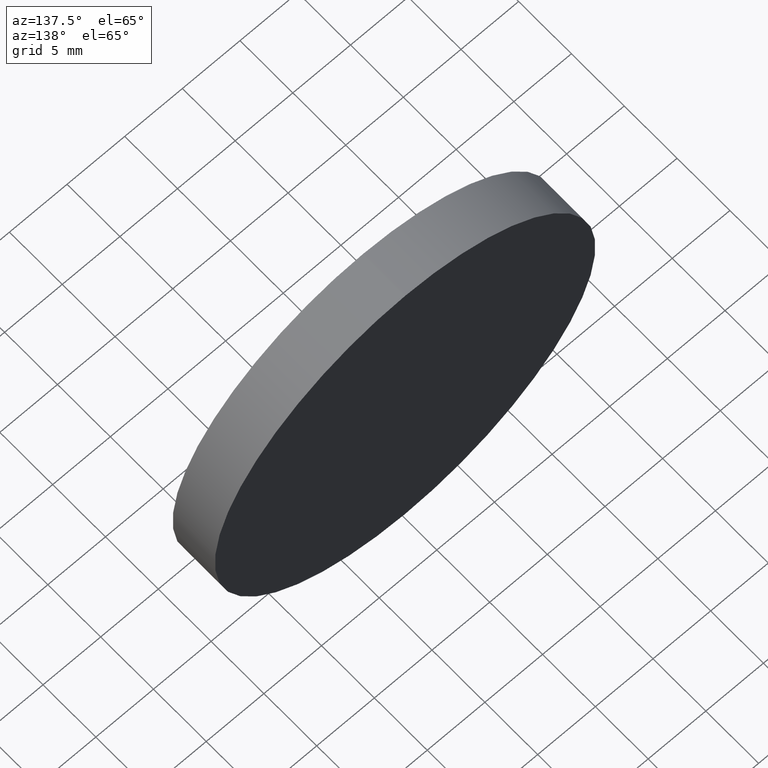
[diagram: clean part render]
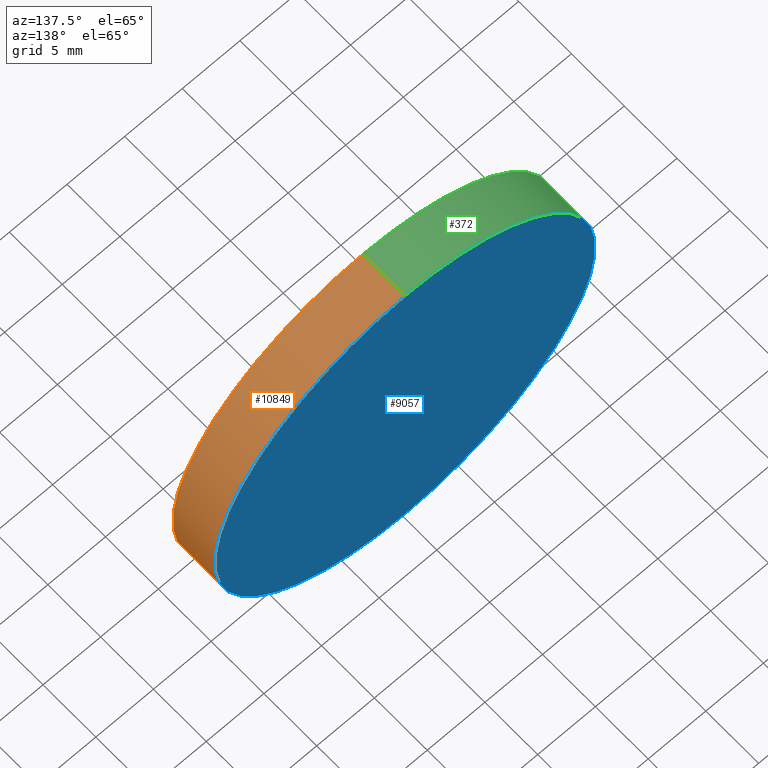
[diagram: same view with three faces highlighted in distinct colors, each labeled with its STEP entity id]
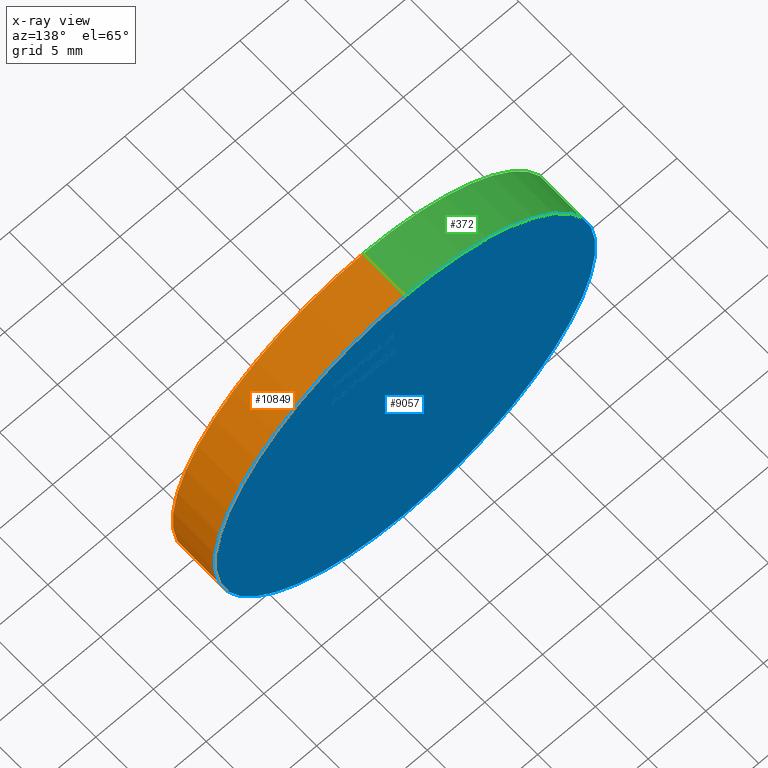
[diagram: x-ray of the same camera — body ghosted, the three highlighted faces saturated]
A machine part, auxiliary view with three faces highlighted in distinct colors.
The next image is the same camera in x-ray (body ghosted, the three faces saturated) — at least one of them is partly hidden behind the body in this view.
Their STEP definitions:

[orange] entity #10849 — the highlighted cylindrical surface (partial cylindrical patch) has radius 16.5 mm, axis along (-0, -1, -0).
#498 = DIRECTION ( 'NONE',  ( 0.000000000000000000, 0.000000000000000000, -1.000000000000000000 ) ) ;
#676 = ORIENTED_EDGE ( 'NONE', *, *, #2953, .F. ) ;
#814 = ORIENTED_EDGE ( 'NONE', *, *, #2279, .T. ) ;
#1492 = CARTESIAN_POINT ( 'NONE',  ( 0.000000000000000000, 2.000000000000000000, 0.000000000000000000 ) ) ;
#1744 = DIRECTION ( 'NONE',  ( 0.000000000000000000, 0.000000000000000000, 1.000000000000000000 ) ) ;
#1957 = AXIS2_PLACEMENT_3D ( 'NONE', #5763, #6756, #1744 ) ;
#1980 = CARTESIAN_POINT ( 'NONE',  ( 2.020667218593133100E-15, 2.000000000000000000, 16.50000000000000000 ) ) ;
#1995 = CIRCLE ( 'NONE', #11368, 16.50000000000000000 ) ;
#2279 = EDGE_CURVE ( 'NONE', #4608, #10196, #1995, .T. ) ;
#2467 = CIRCLE ( 'NONE', #1957, 16.50000000000000000 ) ;
#2673 = CARTESIAN_POINT ( 'NONE',  ( 0.000000000000000000, 2.000000000000000000, -16.50000000000000000 ) ) ;
#2813 = VERTEX_POINT ( 'NONE', #1980 ) ;
#2953 = EDGE_CURVE ( 'NONE', #2813, #7471, #2467, .T. ) ;
#3185 = ORIENTED_EDGE ( 'NONE', *, *, #11003, .T. ) ;
#3250 = LINE ( 'NONE', #11536, #9040 ) ;
#3373 = DIRECTION ( 'NONE',  ( 0.000000000000000000, 1.000000000000000000, 0.000000000000000000 ) ) ;
#3553 = EDGE_CURVE ( 'NONE', #7471, #10196, #3250, .T. ) ;
#3919 = CARTESIAN_POINT ( 'NONE',  ( 2.020667218593133100E-15, 2.000000000000000000, 16.50000000000000000 ) ) ;
#4608 = VERTEX_POINT ( 'NONE', #12791 ) ;
#4743 = CARTESIAN_POINT ( 'NONE',  ( 0.000000000000000000, -2.000000000000000000, -16.50000000000000000 ) ) ;
#4936 = DIRECTION ( 'NONE',  ( -0.000000000000000000, -1.000000000000000000, -0.000000000000000000 ) ) ;
#5171 = CARTESIAN_POINT ( 'NONE',  ( 0.000000000000000000, -2.000000000000000000, 0.000000000000000000 ) ) ;
#5763 = CARTESIAN_POINT ( 'NONE',  ( 0.000000000000000000, 2.000000000000000000, 0.000000000000000000 ) ) ;
#6071 = FACE_OUTER_BOUND ( 'NONE', #7396, .T. ) ;
#6218 = AXIS2_PLACEMENT_3D ( 'NONE', #1492, #7331, #498 ) ;
#6465 = DIRECTION ( 'NONE',  ( -0.000000000000000000, -1.000000000000000000, -0.000000000000000000 ) ) ;
#6756 = DIRECTION ( 'NONE',  ( 0.000000000000000000, 1.000000000000000000, 0.000000000000000000 ) ) ;
#7331 = DIRECTION ( 'NONE',  ( -0.000000000000000000, -1.000000000000000000, -0.000000000000000000 ) ) ;
#7396 = EDGE_LOOP ( 'NONE', ( #676, #3185, #814, #9732 ) ) ;
#7471 = VERTEX_POINT ( 'NONE', #2673 ) ;
#7773 = CYLINDRICAL_SURFACE ( 'NONE', #6218, 16.50000000000000000 ) ;
#9040 = VECTOR ( 'NONE', #6465, 1000.000000000000000 ) ;
#9732 = ORIENTED_EDGE ( 'NONE', *, *, #3553, .F. ) ;
#10196 = VERTEX_POINT ( 'NONE', #4743 ) ;
#10360 = DIRECTION ( 'NONE',  ( 0.000000000000000000, 0.000000000000000000, 1.000000000000000000 ) ) ;
#10849 = ADVANCED_FACE ( 'NONE', ( #6071 ), #7773, .T. ) ;
#10930 = LINE ( 'NONE', #3919, #12946 ) ;
#11003 = EDGE_CURVE ( 'NONE', #2813, #4608, #10930, .T. ) ;
#11368 = AXIS2_PLACEMENT_3D ( 'NONE', #5171, #3373, #10360 ) ;
#11536 = CARTESIAN_POINT ( 'NONE',  ( 0.000000000000000000, 2.000000000000000000, -16.50000000000000000 ) ) ;
#12791 = CARTESIAN_POINT ( 'NONE',  ( 2.020667218593133100E-15, -2.000000000000000000, 16.50000000000000000 ) ) ;
#12946 = VECTOR ( 'NONE', #4936, 1000.000000000000000 ) ;

[blue] entity #9057 — the highlighted planar face has unit normal (0, 1, 0).
#252 = AXIS2_PLACEMENT_3D ( 'NONE', #1482, #3562, #11385 ) ;
#1436 = CARTESIAN_POINT ( 'NONE',  ( 0.000000000000000000, 2.000000000000000000, 0.000000000000000000 ) ) ;
#1478 = DIRECTION ( 'NONE',  ( 0.000000000000000000, -0.000000000000000000, 1.000000000000000000 ) ) ;
#1482 = CARTESIAN_POINT ( 'NONE',  ( 0.000000000000000000, 2.000000000000000000, 0.000000000000000000 ) ) ;
#1551 = ORIENTED_EDGE ( 'NONE', *, *, #2953, .T. ) ;
#1744 = DIRECTION ( 'NONE',  ( 0.000000000000000000, 0.000000000000000000, 1.000000000000000000 ) ) ;
#1957 = AXIS2_PLACEMENT_3D ( 'NONE', #5763, #6756, #1744 ) ;
#1980 = CARTESIAN_POINT ( 'NONE',  ( 2.020667218593133100E-15, 2.000000000000000000, 16.50000000000000000 ) ) ;
#2467 = CIRCLE ( 'NONE', #1957, 16.50000000000000000 ) ;
#2673 = CARTESIAN_POINT ( 'NONE',  ( 0.000000000000000000, 2.000000000000000000, -16.50000000000000000 ) ) ;
#2769 = CIRCLE ( 'NONE', #252, 16.50000000000000000 ) ;
#2813 = VERTEX_POINT ( 'NONE', #1980 ) ;
#2953 = EDGE_CURVE ( 'NONE', #2813, #7471, #2467, .T. ) ;
#3562 = DIRECTION ( 'NONE',  ( 0.000000000000000000, 1.000000000000000000, 0.000000000000000000 ) ) ;
#4276 = AXIS2_PLACEMENT_3D ( 'NONE', #1436, #5407, #1478 ) ;
#5407 = DIRECTION ( 'NONE',  ( 0.000000000000000000, 1.000000000000000000, 0.000000000000000000 ) ) ;
#5763 = CARTESIAN_POINT ( 'NONE',  ( 0.000000000000000000, 2.000000000000000000, 0.000000000000000000 ) ) ;
#6756 = DIRECTION ( 'NONE',  ( 0.000000000000000000, 1.000000000000000000, 0.000000000000000000 ) ) ;
#7471 = VERTEX_POINT ( 'NONE', #2673 ) ;
#7827 = EDGE_LOOP ( 'NONE', ( #9852, #1551 ) ) ;
#9057 = ADVANCED_FACE ( 'NONE', ( #10796 ), #12412, .T. ) ;
#9852 = ORIENTED_EDGE ( 'NONE', *, *, #12865, .T. ) ;
#10796 = FACE_OUTER_BOUND ( 'NONE', #7827, .T. ) ;
#11385 = DIRECTION ( 'NONE',  ( 0.000000000000000000, 0.000000000000000000, 1.000000000000000000 ) ) ;
#12412 = PLANE ( 'NONE',  #4276 ) ;
#12865 = EDGE_CURVE ( 'NONE', #7471, #2813, #2769, .T. ) ;

[green] entity #372 — the highlighted cylindrical surface (partial cylindrical patch) has radius 16.5 mm, axis along (-0, -1, -0).
#252 = AXIS2_PLACEMENT_3D ( 'NONE', #1482, #3562, #11385 ) ;
#307 = AXIS2_PLACEMENT_3D ( 'NONE', #1220, #11347, #11302 ) ;
#372 = ADVANCED_FACE ( 'NONE', ( #3607 ), #7986, .T. ) ;
#1086 = DIRECTION ( 'NONE',  ( 0.000000000000000000, 0.000000000000000000, -1.000000000000000000 ) ) ;
#1220 = CARTESIAN_POINT ( 'NONE',  ( 0.000000000000000000, -2.000000000000000000, 0.000000000000000000 ) ) ;
#1482 = CARTESIAN_POINT ( 'NONE',  ( 0.000000000000000000, 2.000000000000000000, 0.000000000000000000 ) ) ;
#1794 = CIRCLE ( 'NONE', #307, 16.50000000000000000 ) ;
#1980 = CARTESIAN_POINT ( 'NONE',  ( 2.020667218593133100E-15, 2.000000000000000000, 16.50000000000000000 ) ) ;
#2673 = CARTESIAN_POINT ( 'NONE',  ( 0.000000000000000000, 2.000000000000000000, -16.50000000000000000 ) ) ;
#2769 = CIRCLE ( 'NONE', #252, 16.50000000000000000 ) ;
#2813 = VERTEX_POINT ( 'NONE', #1980 ) ;
#2845 = ORIENTED_EDGE ( 'NONE', *, *, #5758, .T. ) ;
#3250 = LINE ( 'NONE', #11536, #9040 ) ;
#3553 = EDGE_CURVE ( 'NONE', #7471, #10196, #3250, .T. ) ;
#3562 = DIRECTION ( 'NONE',  ( 0.000000000000000000, 1.000000000000000000, 0.000000000000000000 ) ) ;
#3607 = FACE_OUTER_BOUND ( 'NONE', #6032, .T. ) ;
#3919 = CARTESIAN_POINT ( 'NONE',  ( 2.020667218593133100E-15, 2.000000000000000000, 16.50000000000000000 ) ) ;
#4608 = VERTEX_POINT ( 'NONE', #12791 ) ;
#4743 = CARTESIAN_POINT ( 'NONE',  ( 0.000000000000000000, -2.000000000000000000, -16.50000000000000000 ) ) ;
#4936 = DIRECTION ( 'NONE',  ( -0.000000000000000000, -1.000000000000000000, -0.000000000000000000 ) ) ;
#5758 = EDGE_CURVE ( 'NONE', #10196, #4608, #1794, .T. ) ;
#6032 = EDGE_LOOP ( 'NONE', ( #7402, #9127, #10222, #2845 ) ) ;
#6465 = DIRECTION ( 'NONE',  ( -0.000000000000000000, -1.000000000000000000, -0.000000000000000000 ) ) ;
#7402 = ORIENTED_EDGE ( 'NONE', *, *, #11003, .F. ) ;
#7471 = VERTEX_POINT ( 'NONE', #2673 ) ;
#7986 = CYLINDRICAL_SURFACE ( 'NONE', #9013, 16.50000000000000000 ) ;
#8017 = CARTESIAN_POINT ( 'NONE',  ( 0.000000000000000000, 2.000000000000000000, 0.000000000000000000 ) ) ;
#9013 = AXIS2_PLACEMENT_3D ( 'NONE', #8017, #11117, #1086 ) ;
#9040 = VECTOR ( 'NONE', #6465, 1000.000000000000000 ) ;
#9127 = ORIENTED_EDGE ( 'NONE', *, *, #12865, .F. ) ;
#10196 = VERTEX_POINT ( 'NONE', #4743 ) ;
#10222 = ORIENTED_EDGE ( 'NONE', *, *, #3553, .T. ) ;
#10930 = LINE ( 'NONE', #3919, #12946 ) ;
#11003 = EDGE_CURVE ( 'NONE', #2813, #4608, #10930, .T. ) ;
#11117 = DIRECTION ( 'NONE',  ( -0.000000000000000000, -1.000000000000000000, -0.000000000000000000 ) ) ;
#11302 = DIRECTION ( 'NONE',  ( 0.000000000000000000, 0.000000000000000000, 1.000000000000000000 ) ) ;
#11347 = DIRECTION ( 'NONE',  ( 0.000000000000000000, 1.000000000000000000, 0.000000000000000000 ) ) ;
#11385 = DIRECTION ( 'NONE',  ( 0.000000000000000000, 0.000000000000000000, 1.000000000000000000 ) ) ;
#11536 = CARTESIAN_POINT ( 'NONE',  ( 0.000000000000000000, 2.000000000000000000, -16.50000000000000000 ) ) ;
#12791 = CARTESIAN_POINT ( 'NONE',  ( 2.020667218593133100E-15, -2.000000000000000000, 16.50000000000000000 ) ) ;
#12865 = EDGE_CURVE ( 'NONE', #7471, #2813, #2769, .T. ) ;
#12946 = VECTOR ( 'NONE', #4936, 1000.000000000000000 ) ;